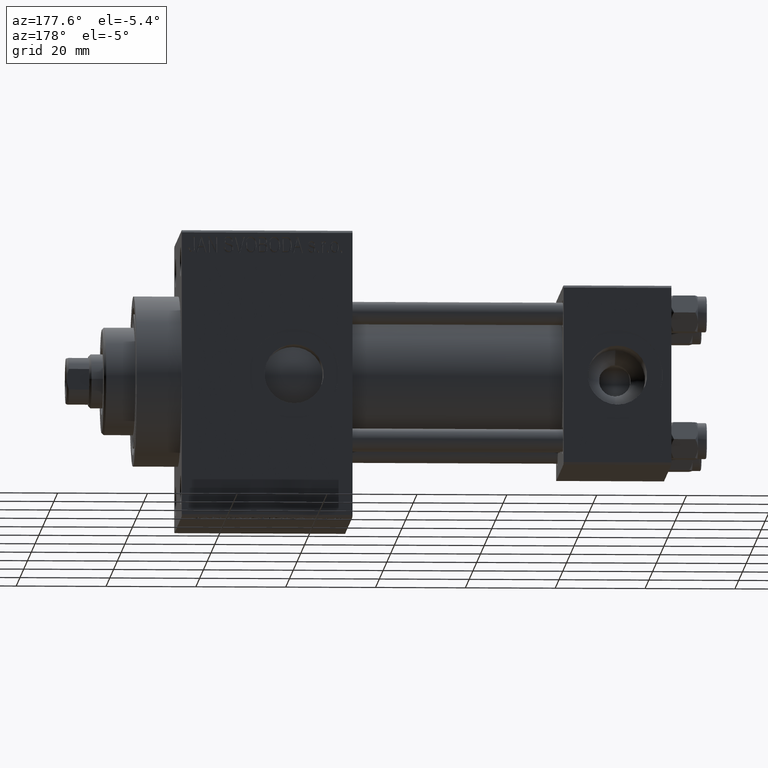
[diagram: clean part render]
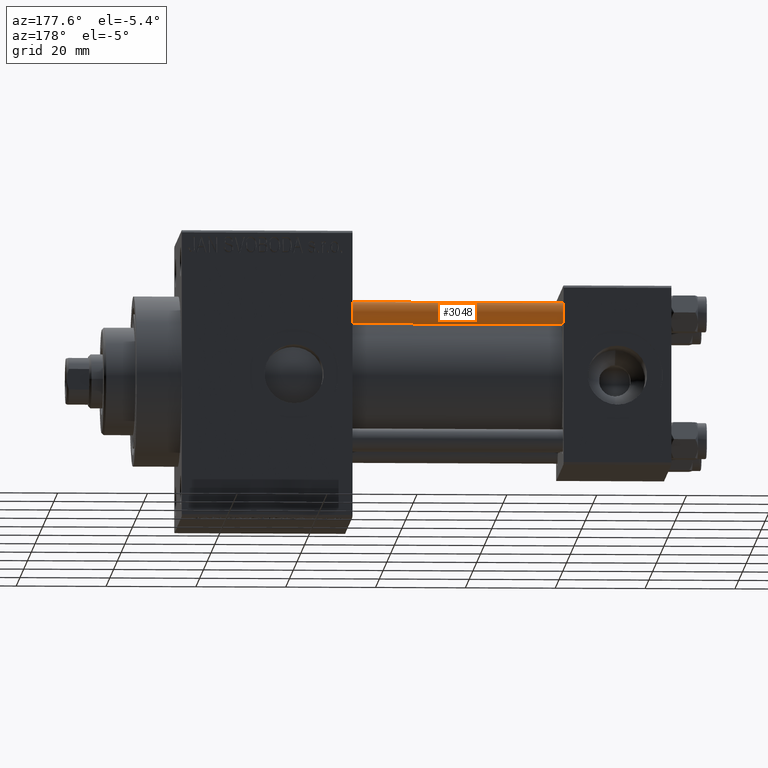
[diagram: same view with one face highlighted and labeled with its STEP entity id]
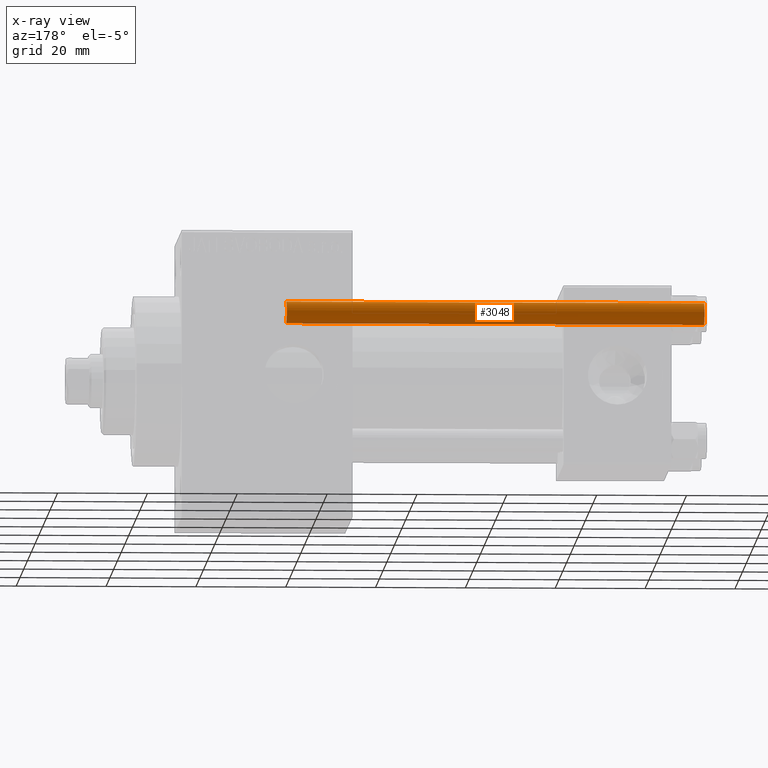
[diagram: x-ray of the same camera — body ghosted, the highlighted face saturated]
A machine part, auxiliary view. The second image highlights one B-rep face of the part: STEP entity #3048.
The next image is the same camera in x-ray: the body ghosted, the highlighted face saturated — about 0% of this face is hidden behind the body in this view.
In plain terms, the highlighted cylindrical surface (edge-blend (fillet) strip) has radius 2.5 mm, axis along (-1, -0, 0).
Its self-contained STEP definition (entity closure, byte-faithful):
#37 = AXIS2_PLACEMENT_3D ( 'NONE', #46910, #35783, #21415 ) ;
#1477 = DIRECTION ( 'NONE',  ( 0.000000000000000000, 0.000000000000000000, -1.000000000000000000 ) ) ;
#1866 = FACE_OUTER_BOUND ( 'NONE', #35347, .T. ) ;
#2333 = DIRECTION ( 'NONE',  ( -0.000000000000000000, -0.000000000000000000, -1.000000000000000000 ) ) ;
#3048 = ADVANCED_FACE ( 'NONE', ( #1866 ), #16967, .T. ) ;
#4961 = EDGE_CURVE ( 'NONE', #17731, #12838, #17437, .T. ) ;
#9084 = ORIENTED_EDGE ( 'NONE', *, *, #37995, .T. ) ;
#9531 = CARTESIAN_POINT ( 'NONE',  ( -2.500000000000000000, 0.000000000000000000, 94.00000000000000000 ) ) ;
#11805 = CARTESIAN_POINT ( 'NONE',  ( 0.000000000000000000, 0.000000000000000000, 0.5000000000000004441 ) ) ;
#12838 = VERTEX_POINT ( 'NONE', #40981 ) ;
#12874 = CARTESIAN_POINT ( 'NONE',  ( 0.000000000000000000, 0.000000000000000000, 93.50000000000001421 ) ) ;
#16967 = CYLINDRICAL_SURFACE ( 'NONE', #37, 2.500000000000000000 ) ;
#17437 = LINE ( 'NONE', #9531, #48350 ) ;
#17731 = VERTEX_POINT ( 'NONE', #24011 ) ;
#20296 = DIRECTION ( 'NONE',  ( 1.000000000000000000, 0.000000000000000000, 0.000000000000000000 ) ) ;
#20644 = CARTESIAN_POINT ( 'NONE',  ( 2.500000000000000000, 3.061616997868383141E-16, 93.50000000000001421 ) ) ;
#21415 = DIRECTION ( 'NONE',  ( -1.000000000000000000, 0.000000000000000000, 0.000000000000000000 ) ) ;
#23124 = ORIENTED_EDGE ( 'NONE', *, *, #27698, .T. ) ;
#24011 = CARTESIAN_POINT ( 'NONE',  ( -2.500000000000000000, 0.000000000000000000, 93.50000000000001421 ) ) ;
#26201 = AXIS2_PLACEMENT_3D ( 'NONE', #11805, #46667, #46425 ) ;
#26877 = VECTOR ( 'NONE', #43713, 1000.000000000000000 ) ;
#27698 = EDGE_CURVE ( 'NONE', #17731, #41272, #29889, .T. ) ;
#28613 = ORIENTED_EDGE ( 'NONE', *, *, #4961, .F. ) ;
#28791 = ORIENTED_EDGE ( 'NONE', *, *, #31056, .T. ) ;
#29889 = CIRCLE ( 'NONE', #42527, 2.500000000000000000 ) ;
#30323 = CARTESIAN_POINT ( 'NONE',  ( 2.500000000000000000, 3.061616997868383141E-16, 0.5000000000000004441 ) ) ;
#31056 = EDGE_CURVE ( 'NONE', #41272, #41177, #47423, .T. ) ;
#32079 = CARTESIAN_POINT ( 'NONE',  ( 2.500000000000000000, 3.061616997868383141E-16, 94.00000000000000000 ) ) ;
#35347 = EDGE_LOOP ( 'NONE', ( #23124, #28791, #9084, #28613 ) ) ;
#35783 = DIRECTION ( 'NONE',  ( -0.000000000000000000, -0.000000000000000000, -1.000000000000000000 ) ) ;
#37995 = EDGE_CURVE ( 'NONE', #41177, #12838, #45913, .T. ) ;
#40981 = CARTESIAN_POINT ( 'NONE',  ( -2.500000000000000000, 0.000000000000000000, 0.5000000000000004441 ) ) ;
#41177 = VERTEX_POINT ( 'NONE', #30323 ) ;
#41272 = VERTEX_POINT ( 'NONE', #20644 ) ;
#42527 = AXIS2_PLACEMENT_3D ( 'NONE', #12874, #1477, #20296 ) ;
#43713 = DIRECTION ( 'NONE',  ( -0.000000000000000000, -0.000000000000000000, -1.000000000000000000 ) ) ;
#45913 = CIRCLE ( 'NONE', #26201, 2.500000000000000000 ) ;
#46425 = DIRECTION ( 'NONE',  ( 1.000000000000000000, 0.000000000000000000, 0.000000000000000000 ) ) ;
#46667 = DIRECTION ( 'NONE',  ( -0.000000000000000000, -0.000000000000000000, 1.000000000000000000 ) ) ;
#46910 = CARTESIAN_POINT ( 'NONE',  ( 0.000000000000000000, 0.000000000000000000, 94.00000000000000000 ) ) ;
#47423 = LINE ( 'NONE', #32079, #26877 ) ;
#48350 = VECTOR ( 'NONE', #2333, 1000.000000000000000 ) ;